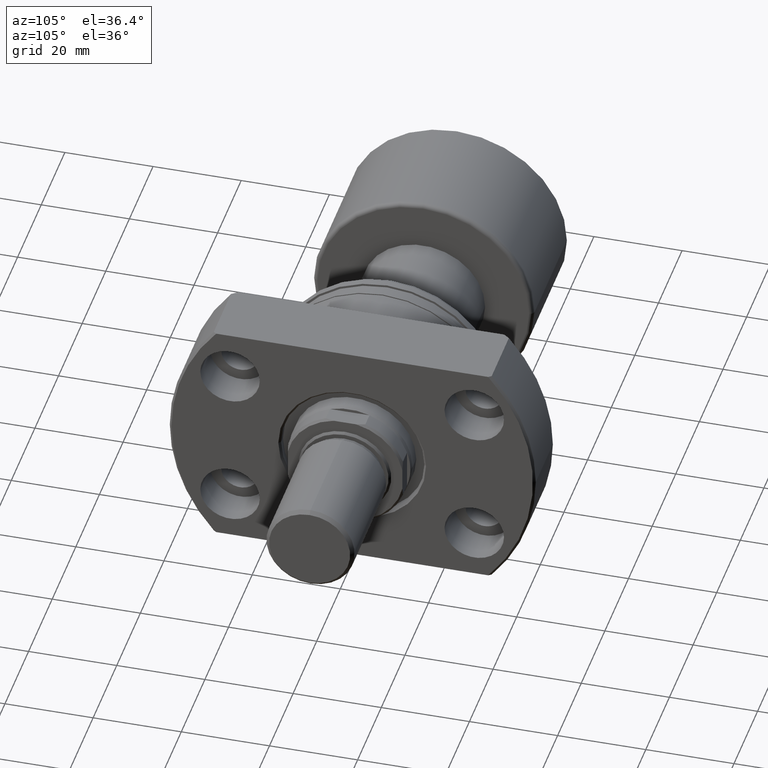
[diagram: clean part render]
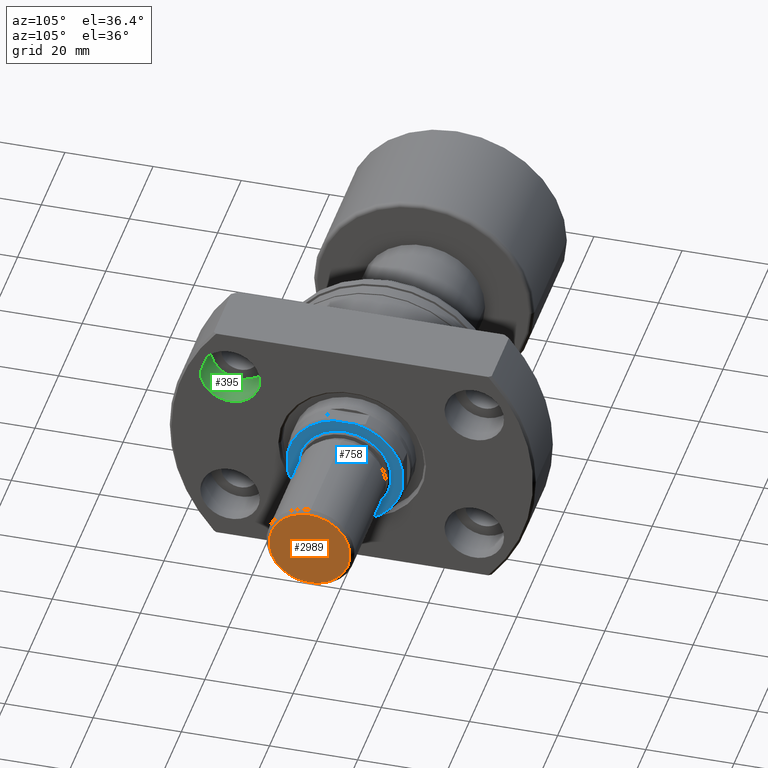
[diagram: same view with three faces highlighted in distinct colors, each labeled with its STEP entity id]
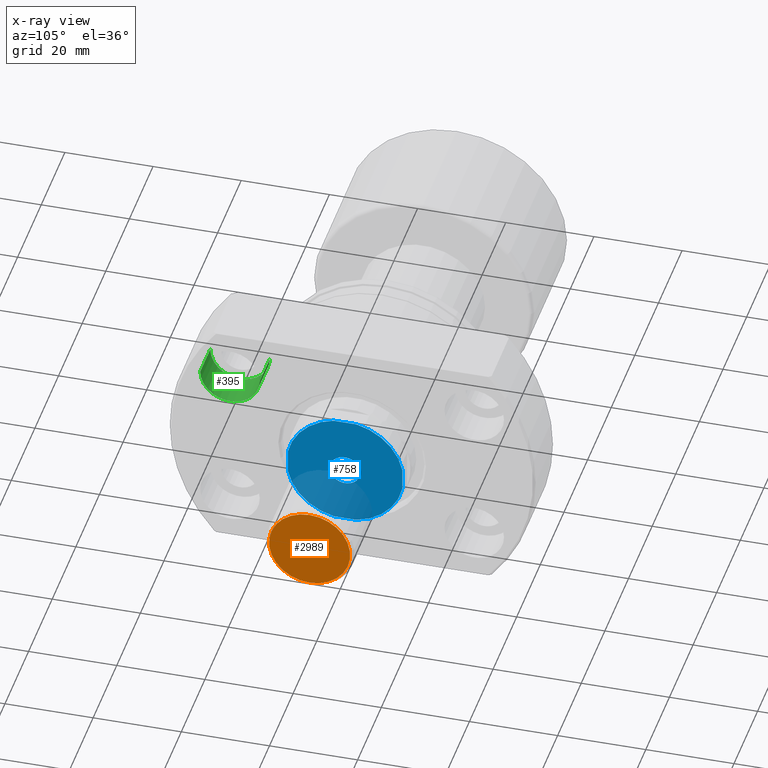
[diagram: x-ray of the same camera — body ghosted, the three highlighted faces saturated]
A machine part, auxiliary view with three faces highlighted in distinct colors.
The next image is the same camera in x-ray (body ghosted, the three faces saturated) — at least one of them is partly hidden behind the body in this view.
Their STEP definitions:

[orange] entity #2989 — the highlighted planar face has unit normal (-1, -0, 0).
#29 = ORIENTED_EDGE ( 'NONE', *, *, #3244, .T. ) ;
#409 = DIRECTION ( 'NONE',  ( 1.000000000000000000, 0.000000000000000000, 0.000000000000000000 ) ) ;
#625 = DIRECTION ( 'NONE',  ( 0.000000000000000000, 0.000000000000000000, 1.000000000000000000 ) ) ;
#736 = AXIS2_PLACEMENT_3D ( 'NONE', #2452, #2933, #409 ) ;
#812 = CARTESIAN_POINT ( 'NONE',  ( 0.000000000000000000, 0.000000000000000000, 0.000000000000000000 ) ) ;
#845 = DIRECTION ( 'NONE',  ( 1.000000000000000000, 0.000000000000000000, 0.000000000000000000 ) ) ;
#939 = PLANE ( 'NONE',  #3272 ) ;
#943 = CARTESIAN_POINT ( 'NONE',  ( 9.199999999999999289, 0.000000000000000000, 0.000000000000000000 ) ) ;
#960 = DIRECTION ( 'NONE',  ( 1.000000000000000000, 0.000000000000000000, -0.000000000000000000 ) ) ;
#1153 = VERTEX_POINT ( 'NONE', #943 ) ;
#1584 = VERTEX_POINT ( 'NONE', #2794 ) ;
#2009 = ORIENTED_EDGE ( 'NONE', *, *, #3309, .T. ) ;
#2148 = CIRCLE ( 'NONE', #2616, 9.199999999999999289 ) ;
#2287 = CARTESIAN_POINT ( 'NONE',  ( 0.000000000000000000, 0.000000000000000000, 0.000000000000000000 ) ) ;
#2394 = EDGE_LOOP ( 'NONE', ( #2009, #29 ) ) ;
#2452 = CARTESIAN_POINT ( 'NONE',  ( 0.000000000000000000, 0.000000000000000000, 0.000000000000000000 ) ) ;
#2616 = AXIS2_PLACEMENT_3D ( 'NONE', #812, #3314, #845 ) ;
#2794 = CARTESIAN_POINT ( 'NONE',  ( -9.199999999999999289, 1.175660927181458842E-15, 0.000000000000000000 ) ) ;
#2933 = DIRECTION ( 'NONE',  ( -0.000000000000000000, -0.000000000000000000, -1.000000000000000000 ) ) ;
#2989 = ADVANCED_FACE ( 'NONE', ( #3425 ), #939, .F. ) ;
#3218 = CIRCLE ( 'NONE', #736, 9.199999999999999289 ) ;
#3244 = EDGE_CURVE ( 'NONE', #1584, #1153, #3218, .T. ) ;
#3272 = AXIS2_PLACEMENT_3D ( 'NONE', #2287, #625, #960 ) ;
#3309 = EDGE_CURVE ( 'NONE', #1153, #1584, #2148, .T. ) ;
#3314 = DIRECTION ( 'NONE',  ( -0.000000000000000000, -0.000000000000000000, -1.000000000000000000 ) ) ;
#3425 = FACE_OUTER_BOUND ( 'NONE', #2394, .T. ) ;

[blue] entity #758 — the highlighted planar face has unit normal (-1, -0, 0).
#74 = AXIS2_PLACEMENT_3D ( 'NONE', #3018, #1028, #2716 ) ;
#172 = DIRECTION ( 'NONE',  ( 0.000000000000000000, -1.000000000000000000, 0.000000000000000000 ) ) ;
#195 = CIRCLE ( 'NONE', #1791, 3.500000000000375699 ) ;
#225 = FACE_OUTER_BOUND ( 'NONE', #2522, .T. ) ;
#282 = DIRECTION ( 'NONE',  ( 1.069542322069065801E-17, -1.000000000000000000, 0.000000000000000000 ) ) ;
#415 = DIRECTION ( 'NONE',  ( -1.549165163333000246E-14, -1.000000000000000000, -1.936456454166250505E-16 ) ) ;
#449 = CARTESIAN_POINT ( 'NONE',  ( 96.00000000000022737, 12.99999999999841016, -2.561737691498041869 ) ) ;
#453 = EDGE_CURVE ( 'NONE', #3666, #3573, #1898, .T. ) ;
#485 = DIRECTION ( 'NONE',  ( 1.000000000000000000, 1.069542322069065801E-17, 0.000000000000000000 ) ) ;
#487 = DIRECTION ( 'NONE',  ( -1.000000000000000000, -1.069542322069065801E-17, -0.000000000000000000 ) ) ;
#504 = DIRECTION ( 'NONE',  ( 0.000000000000000000, -1.000000000000000000, 0.000000000000000000 ) ) ;
#514 = VERTEX_POINT ( 'NONE', #3004 ) ;
#515 = CARTESIAN_POINT ( 'NONE',  ( 95.99999999999978684, -13.00000000000158806, -4.479118216792240759 ) ) ;
#553 = VECTOR ( 'NONE', #1587, 1000.000000000000000 ) ;
#618 = DIRECTION ( 'NONE',  ( 1.549165163333000246E-14, 1.000000000000000000, 1.936456454166250505E-16 ) ) ;
#653 = CIRCLE ( 'NONE', #2361, 13.24999999999997691 ) ;
#728 = VERTEX_POINT ( 'NONE', #1621 ) ;
#758 = ADVANCED_FACE ( 'NONE', ( #2520, #225 ), #1095, .F. ) ;
#763 = CARTESIAN_POINT ( 'NONE',  ( 96.00000000000004263, 2.561737691489861746, 13.00000000000000000 ) ) ;
#890 = DIRECTION ( 'NONE',  ( -1.000000000000000000, -1.069542322069065801E-17, -0.000000000000000000 ) ) ;
#909 = DIRECTION ( 'NONE',  ( 0.000000000000000000, -1.000000000000000000, 0.000000000000000000 ) ) ;
#944 = LINE ( 'NONE', #1781, #2902 ) ;
#992 = EDGE_LOOP ( 'NONE', ( #1894, #2660 ) ) ;
#1028 = DIRECTION ( 'NONE',  ( 1.000000000000000000, 1.069542322069065801E-17, 0.000000000000000000 ) ) ;
#1029 = EDGE_CURVE ( 'NONE', #514, #1435, #653, .T. ) ;
#1043 = CARTESIAN_POINT ( 'NONE',  ( 96.00000000000000000, -1.590974207512541602E-12, 0.000000000000000000 ) ) ;
#1047 = ORIENTED_EDGE ( 'NONE', *, *, #2761, .T. ) ;
#1095 = PLANE ( 'NONE',  #1598 ) ;
#1264 = CARTESIAN_POINT ( 'NONE',  ( 95.99999999999992895, -4.479118216793828822, 12.99999999999999822 ) ) ;
#1341 = CARTESIAN_POINT ( 'NONE',  ( 95.99999999999995737, -2.561737691489791136, -13.00000000000000000 ) ) ;
#1414 = ORIENTED_EDGE ( 'NONE', *, *, #2097, .F. ) ;
#1423 = VERTEX_POINT ( 'NONE', #2715 ) ;
#1435 = VERTEX_POINT ( 'NONE', #1341 ) ;
#1442 = CARTESIAN_POINT ( 'NONE',  ( 96.00000000000000000, -1.590974207512541602E-12, 0.000000000000000000 ) ) ;
#1516 = ORIENTED_EDGE ( 'NONE', *, *, #1953, .F. ) ;
#1553 = ORIENTED_EDGE ( 'NONE', *, *, #1029, .T. ) ;
#1571 = CARTESIAN_POINT ( 'NONE',  ( 96.00000000000000000, 3.499999999998778755, 0.000000000000000000 ) ) ;
#1587 = DIRECTION ( 'NONE',  ( 0.000000000000000000, 3.872912908332501010E-16, -1.000000000000000000 ) ) ;
#1598 = AXIS2_PLACEMENT_3D ( 'NONE', #2802, #3400, #282 ) ;
#1621 = CARTESIAN_POINT ( 'NONE',  ( 96.00000000000000000, 12.99999999999840661, 2.561737691497941505 ) ) ;
#1633 = DIRECTION ( 'NONE',  ( 1.000000000000000000, 1.069542322069065801E-17, 0.000000000000000000 ) ) ;
#1781 = CARTESIAN_POINT ( 'NONE',  ( 96.00000000000007105, 4.479118216790648255, -12.99999999999999822 ) ) ;
#1791 = AXIS2_PLACEMENT_3D ( 'NONE', #1043, #487, #1879 ) ;
#1850 = VERTEX_POINT ( 'NONE', #449 ) ;
#1879 = DIRECTION ( 'NONE',  ( 0.000000000000000000, -1.000000000000000000, 0.000000000000000000 ) ) ;
#1894 = ORIENTED_EDGE ( 'NONE', *, *, #453, .T. ) ;
#1898 = CIRCLE ( 'NONE', #2355, 3.500000000000375699 ) ;
#1901 = CARTESIAN_POINT ( 'NONE',  ( 96.00000000000000000, 1.026760629186303218E-15, 0.000000000000000000 ) ) ;
#1953 = EDGE_CURVE ( 'NONE', #514, #1423, #3675, .T. ) ;
#2047 = CARTESIAN_POINT ( 'NONE',  ( 96.00000000000004263, 2.561737691489977653, -12.99999999999999822 ) ) ;
#2097 = EDGE_CURVE ( 'NONE', #2944, #3211, #2335, .T. ) ;
#2169 = ORIENTED_EDGE ( 'NONE', *, *, #3117, .F. ) ;
#2228 = DIRECTION ( 'NONE',  ( 0.000000000000000000, -3.872912908332501010E-16, 1.000000000000000000 ) ) ;
#2272 = EDGE_CURVE ( 'NONE', #2621, #1850, #3634, .T. ) ;
#2335 = LINE ( 'NONE', #1264, #2961 ) ;
#2355 = AXIS2_PLACEMENT_3D ( 'NONE', #1442, #890, #909 ) ;
#2361 = AXIS2_PLACEMENT_3D ( 'NONE', #2403, #485, #504 ) ;
#2403 = CARTESIAN_POINT ( 'NONE',  ( 96.00000000000000000, 1.026760629186303218E-15, 0.000000000000000000 ) ) ;
#2430 = AXIS2_PLACEMENT_3D ( 'NONE', #1901, #3323, #172 ) ;
#2435 = LINE ( 'NONE', #3587, #553 ) ;
#2520 = FACE_BOUND ( 'NONE', #992, .T. ) ;
#2522 = EDGE_LOOP ( 'NONE', ( #3232, #2941, #2169, #1047, #1414, #2675, #1516, #1553 ) ) ;
#2560 = EDGE_CURVE ( 'NONE', #2621, #1435, #944, .T. ) ;
#2621 = VERTEX_POINT ( 'NONE', #2047 ) ;
#2660 = ORIENTED_EDGE ( 'NONE', *, *, #2693, .T. ) ;
#2675 = ORIENTED_EDGE ( 'NONE', *, *, #2937, .T. ) ;
#2693 = EDGE_CURVE ( 'NONE', #3573, #3666, #195, .T. ) ;
#2715 = CARTESIAN_POINT ( 'NONE',  ( 95.99999999999978684, -13.00000000000159162, 2.561737691481699830 ) ) ;
#2716 = DIRECTION ( 'NONE',  ( 0.000000000000000000, -1.000000000000000000, -8.881784197001252323E-16 ) ) ;
#2754 = DIRECTION ( 'NONE',  ( 0.000000000000000000, -1.000000000000000000, 8.881784197001252323E-16 ) ) ;
#2761 = EDGE_CURVE ( 'NONE', #728, #3211, #3029, .T. ) ;
#2802 = CARTESIAN_POINT ( 'NONE',  ( 96.00000000000000000, 8.673617379884035472E-16, 0.000000000000000000 ) ) ;
#2902 = VECTOR ( 'NONE', #415, 1000.000000000000000 ) ;
#2904 = CIRCLE ( 'NONE', #3451, 13.24999999999997691 ) ;
#2937 = EDGE_CURVE ( 'NONE', #2944, #1423, #2904, .T. ) ;
#2941 = ORIENTED_EDGE ( 'NONE', *, *, #2272, .T. ) ;
#2944 = VERTEX_POINT ( 'NONE', #3647 ) ;
#2961 = VECTOR ( 'NONE', #618, 1000.000000000000000 ) ;
#3004 = CARTESIAN_POINT ( 'NONE',  ( 96.00000000000000000, -13.00000000000158806, -2.561737691481710488 ) ) ;
#3018 = CARTESIAN_POINT ( 'NONE',  ( 96.00000000000000000, 1.026760629186303218E-15, 0.000000000000000000 ) ) ;
#3029 = CIRCLE ( 'NONE', #74, 13.24999999999999112 ) ;
#3117 = EDGE_CURVE ( 'NONE', #728, #1850, #2435, .T. ) ;
#3129 = CARTESIAN_POINT ( 'NONE',  ( 96.00000000000000000, 1.026760629186303218E-15, 0.000000000000000000 ) ) ;
#3211 = VERTEX_POINT ( 'NONE', #763 ) ;
#3232 = ORIENTED_EDGE ( 'NONE', *, *, #2560, .F. ) ;
#3323 = DIRECTION ( 'NONE',  ( 1.000000000000000000, 1.069542322069065801E-17, 0.000000000000000000 ) ) ;
#3326 = VECTOR ( 'NONE', #2228, 1000.000000000000000 ) ;
#3400 = DIRECTION ( 'NONE',  ( -1.000000000000000000, -1.069542322069065801E-17, 0.000000000000000000 ) ) ;
#3451 = AXIS2_PLACEMENT_3D ( 'NONE', #3129, #1633, #2754 ) ;
#3522 = CARTESIAN_POINT ( 'NONE',  ( 96.00000000000000000, -3.500000000002087663, 4.286263797016345004E-16 ) ) ;
#3573 = VERTEX_POINT ( 'NONE', #3522 ) ;
#3587 = CARTESIAN_POINT ( 'NONE',  ( 96.00000000000022737, 12.99999999999840661, 4.479118216792238982 ) ) ;
#3634 = CIRCLE ( 'NONE', #2430, 13.25000000000001243 ) ;
#3647 = CARTESIAN_POINT ( 'NONE',  ( 95.99999999999995737, -2.561737691489785362, 13.00000000000000000 ) ) ;
#3666 = VERTEX_POINT ( 'NONE', #1571 ) ;
#3675 = LINE ( 'NONE', #515, #3326 ) ;

[green] entity #395 — the highlighted cylindrical surface (edge-blend (fillet) strip) has radius 6.75 mm, axis along (1, -0, 0).
#9 = EDGE_LOOP ( 'NONE', ( #2792, #1169, #2199, #1624 ) ) ;
#45 = DIRECTION ( 'NONE',  ( 2.878355989768924761E-14, 1.000000000000000000, 0.000000000000000000 ) ) ;
#69 = DIRECTION ( 'NONE',  ( 1.000000000000000000, -2.884016039175094104E-14, 0.000000000000000000 ) ) ;
#375 = DIRECTION ( 'NONE',  ( 1.000000000000000000, -2.886466111666351885E-14, -0.000000000000000000 ) ) ;
#392 = DIRECTION ( 'NONE',  ( 2.878355989768924761E-14, 1.000000000000000000, 0.000000000000000000 ) ) ;
#395 = ADVANCED_FACE ( 'NONE', ( #2508 ), #3364, .F. ) ;
#447 = VERTEX_POINT ( 'NONE', #2004 ) ;
#550 = DIRECTION ( 'NONE',  ( 1.000000000000000000, -2.886466111666351885E-14, -0.000000000000000000 ) ) ;
#819 = LINE ( 'NONE', #3076, #1611 ) ;
#850 = VERTEX_POINT ( 'NONE', #2939 ) ;
#903 = CARTESIAN_POINT ( 'NONE',  ( 23.69999999999919993, -27.70000000000067786, 16.00000000000000000 ) ) ;
#938 = LINE ( 'NONE', #2548, #1603 ) ;
#1101 = CARTESIAN_POINT ( 'NONE',  ( 23.69999999999919993, -27.70000000000067786, 16.00000000000000000 ) ) ;
#1169 = ORIENTED_EDGE ( 'NONE', *, *, #2446, .T. ) ;
#1347 = AXIS2_PLACEMENT_3D ( 'NONE', #1101, #550, #1680 ) ;
#1480 = CIRCLE ( 'NONE', #3382, 6.749999999999999112 ) ;
#1603 = VECTOR ( 'NONE', #2894, 1000.000000000000000 ) ;
#1611 = VECTOR ( 'NONE', #375, 1000.000000000000000 ) ;
#1622 = EDGE_CURVE ( 'NONE', #2780, #1923, #938, .T. ) ;
#1624 = ORIENTED_EDGE ( 'NONE', *, *, #1622, .F. ) ;
#1640 = EDGE_CURVE ( 'NONE', #850, #1923, #1480, .T. ) ;
#1680 = DIRECTION ( 'NONE',  ( 2.878355989768924761E-14, 1.000000000000000000, 0.000000000000000000 ) ) ;
#1691 = EDGE_CURVE ( 'NONE', #447, #2780, #3265, .T. ) ;
#1923 = VERTEX_POINT ( 'NONE', #2488 ) ;
#2004 = CARTESIAN_POINT ( 'NONE',  ( 23.69999999999900808, -34.45000000000068496, 16.00000000000000000 ) ) ;
#2199 = ORIENTED_EDGE ( 'NONE', *, *, #1640, .T. ) ;
#2309 = AXIS2_PLACEMENT_3D ( 'NONE', #903, #69, #392 ) ;
#2446 = EDGE_CURVE ( 'NONE', #447, #850, #819, .T. ) ;
#2488 = CARTESIAN_POINT ( 'NONE',  ( 32.19999999999939888, -20.95000000000092655, 16.00000000000000000 ) ) ;
#2508 = FACE_OUTER_BOUND ( 'NONE', #9, .T. ) ;
#2548 = CARTESIAN_POINT ( 'NONE',  ( 23.69999999999939533, -20.95000000000068141, 16.00000000000000000 ) ) ;
#2702 = CARTESIAN_POINT ( 'NONE',  ( 23.69999999999939533, -20.95000000000068141, 16.00000000000000000 ) ) ;
#2780 = VERTEX_POINT ( 'NONE', #2702 ) ;
#2792 = ORIENTED_EDGE ( 'NONE', *, *, #1691, .F. ) ;
#2894 = DIRECTION ( 'NONE',  ( 1.000000000000000000, -2.886466111666351885E-14, -0.000000000000000000 ) ) ;
#2939 = CARTESIAN_POINT ( 'NONE',  ( 32.19999999999900808, -34.45000000000092655, 16.00000000000000000 ) ) ;
#3076 = CARTESIAN_POINT ( 'NONE',  ( 23.69999999999900808, -34.45000000000068496, 16.00000000000000000 ) ) ;
#3188 = CARTESIAN_POINT ( 'NONE',  ( 32.19999999999919993, -27.70000000000092655, 16.00000000000000000 ) ) ;
#3205 = DIRECTION ( 'NONE',  ( 1.000000000000000000, -2.884016039175094104E-14, 0.000000000000000000 ) ) ;
#3265 = CIRCLE ( 'NONE', #2309, 6.749999999999999112 ) ;
#3364 = CYLINDRICAL_SURFACE ( 'NONE', #1347, 6.749999999999999112 ) ;
#3382 = AXIS2_PLACEMENT_3D ( 'NONE', #3188, #3205, #45 ) ;